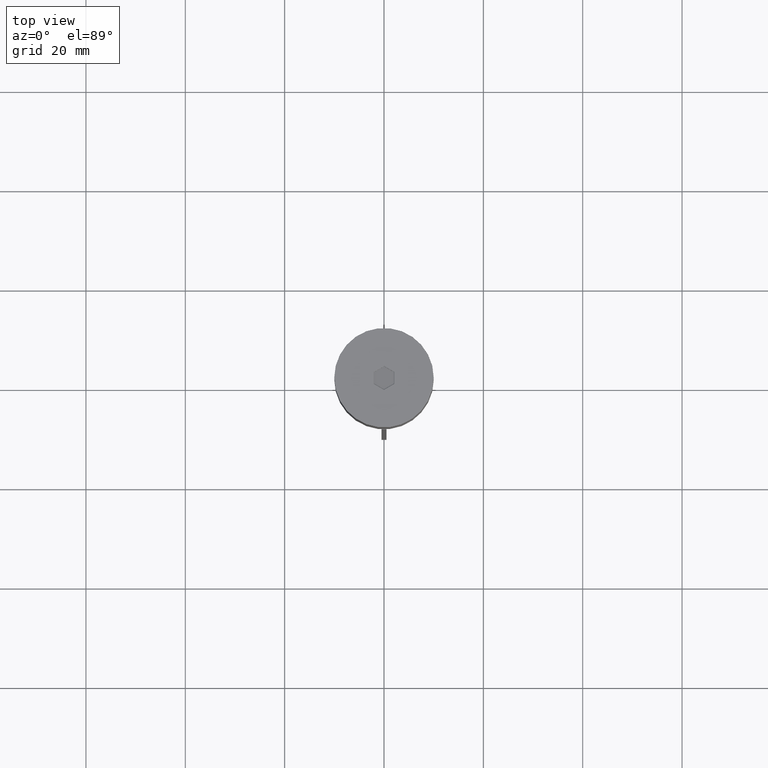
[diagram: clean part render]
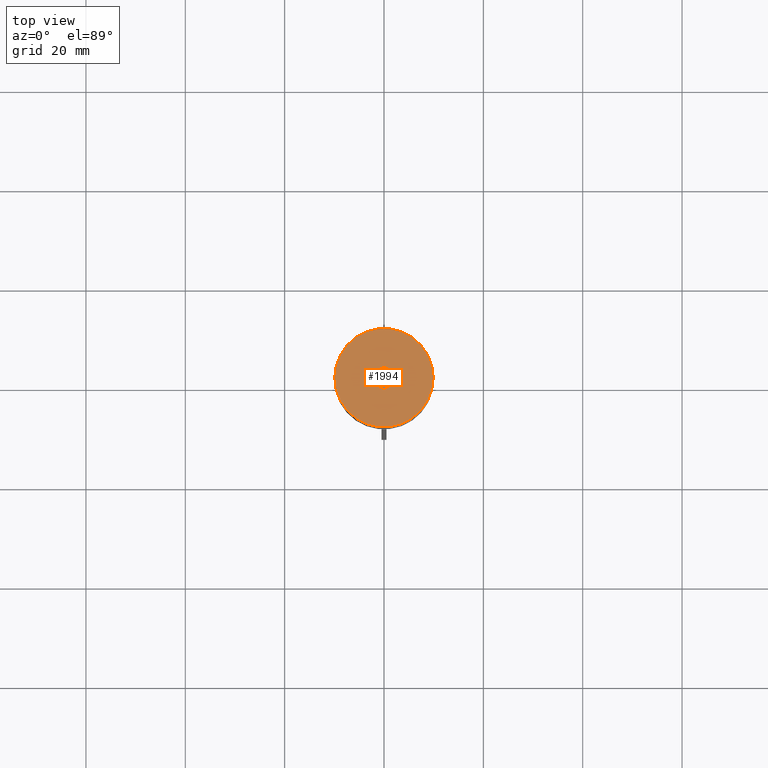
[diagram: same view with one face highlighted and labeled with its STEP entity id]
A machine part, top view. The second image highlights one B-rep face of the part: STEP entity #1994.
In plain terms, the highlighted planar face has unit normal (0, -0, 1).
Its self-contained STEP definition (entity closure, byte-faithful):
#2 = EDGE_CURVE ( 'NONE', #1354, #709, #1560, .T. ) ;
#45 = DIRECTION ( 'NONE',  ( -0.000000000000000000, -0.000000000000000000, 1.000000000000000000 ) ) ;
#48 = FACE_BOUND ( 'NONE', #1071, .T. ) ;
#59 = CARTESIAN_POINT ( 'NONE',  ( 0.000000000000000000, 0.000000000000000000, 0.000000000000000000 ) ) ;
#65 = ORIENTED_EDGE ( 'NONE', *, *, #320, .T. ) ;
#105 = CARTESIAN_POINT ( 'NONE',  ( 4.203903573631408157E-17, 2.424871130596458091, 0.000000000000000000 ) ) ;
#127 = AXIS2_PLACEMENT_3D ( 'NONE', #59, #45, #390 ) ;
#171 = DIRECTION ( 'NONE',  ( 0.000000000000000000, -1.000000000000000000, 0.000000000000000000 ) ) ;
#178 = CARTESIAN_POINT ( 'NONE',  ( 2.050000000000013145, 1.241303078757717726, 0.000000000000000000 ) ) ;
#179 = ORIENTED_EDGE ( 'NONE', *, *, #637, .T. ) ;
#196 = CARTESIAN_POINT ( 'NONE',  ( 2.100000000000026290, -1.154700538379251684, 0.000000000000000000 ) ) ;
#216 = CARTESIAN_POINT ( 'NONE',  ( 0.000000000000000000, 0.000000000000000000, 0.000000000000000000 ) ) ;
#224 = DIRECTION ( 'NONE',  ( 1.000000000000000000, 0.000000000000000000, 0.000000000000000000 ) ) ;
#238 = DIRECTION ( 'NONE',  ( 0.000000000000000000, -0.000000000000000000, 1.000000000000000000 ) ) ;
#320 = EDGE_CURVE ( 'NONE', #402, #1761, #1471, .T. ) ;
#357 = CARTESIAN_POINT ( 'NONE',  ( 0.05000000000001370015, -2.396003617136969854, 0.000000000000000000 ) ) ;
#367 = LINE ( 'NONE', #1797, #1999 ) ;
#378 = PLANE ( 'NONE',  #1237 ) ;
#390 = DIRECTION ( 'NONE',  ( 1.000000000000000000, 0.000000000000000000, 0.000000000000000000 ) ) ;
#402 = VERTEX_POINT ( 'NONE', #1545 ) ;
#445 = DIRECTION ( 'NONE',  ( 1.000000000000000000, 0.000000000000000000, 0.000000000000000000 ) ) ;
#452 = EDGE_CURVE ( 'NONE', #709, #1354, #1425, .T. ) ;
#564 = EDGE_LOOP ( 'NONE', ( #860, #739 ) ) ;
#568 = FACE_OUTER_BOUND ( 'NONE', #564, .T. ) ;
#637 = EDGE_CURVE ( 'NONE', #840, #402, #367, .T. ) ;
#679 = CARTESIAN_POINT ( 'NONE',  ( -2.050000000000013145, -1.241303078757718614, 0.000000000000000000 ) ) ;
#685 = ORIENTED_EDGE ( 'NONE', *, *, #2083, .T. ) ;
#687 = DIRECTION ( 'NONE',  ( -0.8660254037844388186, 0.4999999999999997780, 0.000000000000000000 ) ) ;
#688 = DIRECTION ( 'NONE',  ( 0.8660254037844387076, 0.4999999999999998890, 0.000000000000000000 ) ) ;
#699 = VECTOR ( 'NONE', #1488, 999.9999999999998863 ) ;
#704 = EDGE_CURVE ( 'NONE', #1484, #1257, #864, .T. ) ;
#709 = VERTEX_POINT ( 'NONE', #1296 ) ;
#728 = EDGE_CURVE ( 'NONE', #1093, #1484, #1626, .T. ) ;
#739 = ORIENTED_EDGE ( 'NONE', *, *, #2, .T. ) ;
#746 = CARTESIAN_POINT ( 'NONE',  ( 0.000000000000000000, 0.000000000000000000, 0.000000000000000000 ) ) ;
#805 = ORIENTED_EDGE ( 'NONE', *, *, #728, .T. ) ;
#840 = VERTEX_POINT ( 'NONE', #957 ) ;
#844 = VECTOR ( 'NONE', #1473, 1000.000000000000000 ) ;
#847 = LINE ( 'NONE', #178, #844 ) ;
#860 = ORIENTED_EDGE ( 'NONE', *, *, #452, .T. ) ;
#864 = LINE ( 'NONE', #357, #699 ) ;
#957 = CARTESIAN_POINT ( 'NONE',  ( -2.100000000000026290, -1.212435565298229934, 0.000000000000000000 ) ) ;
#965 = ORIENTED_EDGE ( 'NONE', *, *, #1659, .T. ) ;
#1053 = CARTESIAN_POINT ( 'NONE',  ( -9.899999999999996803, 1.218523565151615986E-15, 0.000000000000000000 ) ) ;
#1071 = EDGE_LOOP ( 'NONE', ( #2051, #685, #179, #65, #965, #805 ) ) ;
#1093 = VERTEX_POINT ( 'NONE', #1385 ) ;
#1204 = VECTOR ( 'NONE', #171, 1000.000000000000000 ) ;
#1237 = AXIS2_PLACEMENT_3D ( 'NONE', #216, #238, #224 ) ;
#1257 = VERTEX_POINT ( 'NONE', #1763 ) ;
#1296 = CARTESIAN_POINT ( 'NONE',  ( 9.899999999999996803, 0.000000000000000000, 0.000000000000000000 ) ) ;
#1299 = VECTOR ( 'NONE', #688, 1000.000000000000000 ) ;
#1354 = VERTEX_POINT ( 'NONE', #1053 ) ;
#1385 = CARTESIAN_POINT ( 'NONE',  ( 2.100000000000026290, 1.212435565298229045, 0.000000000000000000 ) ) ;
#1425 = CIRCLE ( 'NONE', #1596, 9.899999999999996803 ) ;
#1471 = LINE ( 'NONE', #1818, #1299 ) ;
#1473 = DIRECTION ( 'NONE',  ( 0.8660254037844387076, -0.4999999999999998890, 0.000000000000000000 ) ) ;
#1478 = LINE ( 'NONE', #679, #2012 ) ;
#1484 = VERTEX_POINT ( 'NONE', #1895 ) ;
#1488 = DIRECTION ( 'NONE',  ( -0.8660254037844385966, -0.5000000000000002220, 0.000000000000000000 ) ) ;
#1545 = CARTESIAN_POINT ( 'NONE',  ( -2.100000000000026290, 1.212435565298228823, 0.000000000000000000 ) ) ;
#1560 = CIRCLE ( 'NONE', #127, 9.899999999999996803 ) ;
#1596 = AXIS2_PLACEMENT_3D ( 'NONE', #746, #2019, #445 ) ;
#1626 = LINE ( 'NONE', #196, #1204 ) ;
#1659 = EDGE_CURVE ( 'NONE', #1761, #1093, #847, .T. ) ;
#1661 = DIRECTION ( 'NONE',  ( 0.000000000000000000, 1.000000000000000000, 0.000000000000000000 ) ) ;
#1761 = VERTEX_POINT ( 'NONE', #105 ) ;
#1763 = CARTESIAN_POINT ( 'NONE',  ( 7.347200661038515101E-16, -2.424871130596458535, 0.000000000000000000 ) ) ;
#1797 = CARTESIAN_POINT ( 'NONE',  ( -2.100000000000026290, 1.154700538379251018, 0.000000000000000000 ) ) ;
#1818 = CARTESIAN_POINT ( 'NONE',  ( -0.05000000000001329770, 2.396003617136968966, 0.000000000000000000 ) ) ;
#1895 = CARTESIAN_POINT ( 'NONE',  ( 2.100000000000026290, -1.212435565298229267, 0.000000000000000000 ) ) ;
#1994 = ADVANCED_FACE ( 'NONE', ( #568, #48 ), #378, .T. ) ;
#1999 = VECTOR ( 'NONE', #1661, 1000.000000000000000 ) ;
#2012 = VECTOR ( 'NONE', #687, 1000.000000000000114 ) ;
#2019 = DIRECTION ( 'NONE',  ( -0.000000000000000000, -0.000000000000000000, 1.000000000000000000 ) ) ;
#2051 = ORIENTED_EDGE ( 'NONE', *, *, #704, .T. ) ;
#2083 = EDGE_CURVE ( 'NONE', #1257, #840, #1478, .T. ) ;